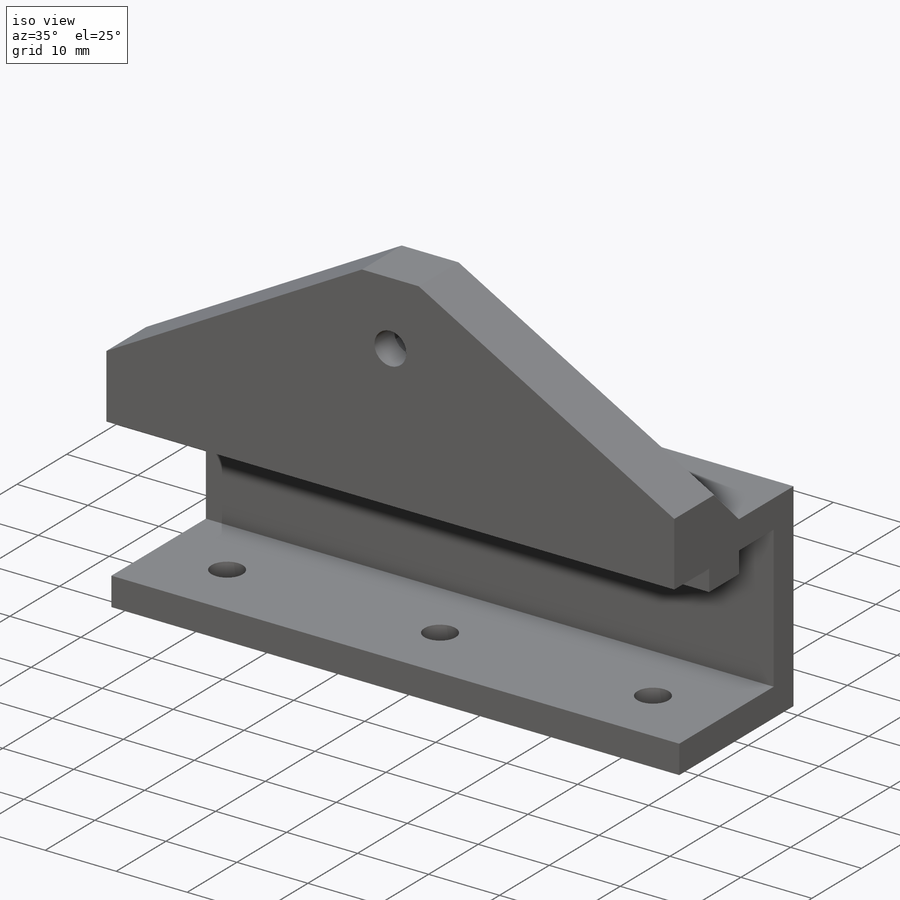
[diagram: iso view]
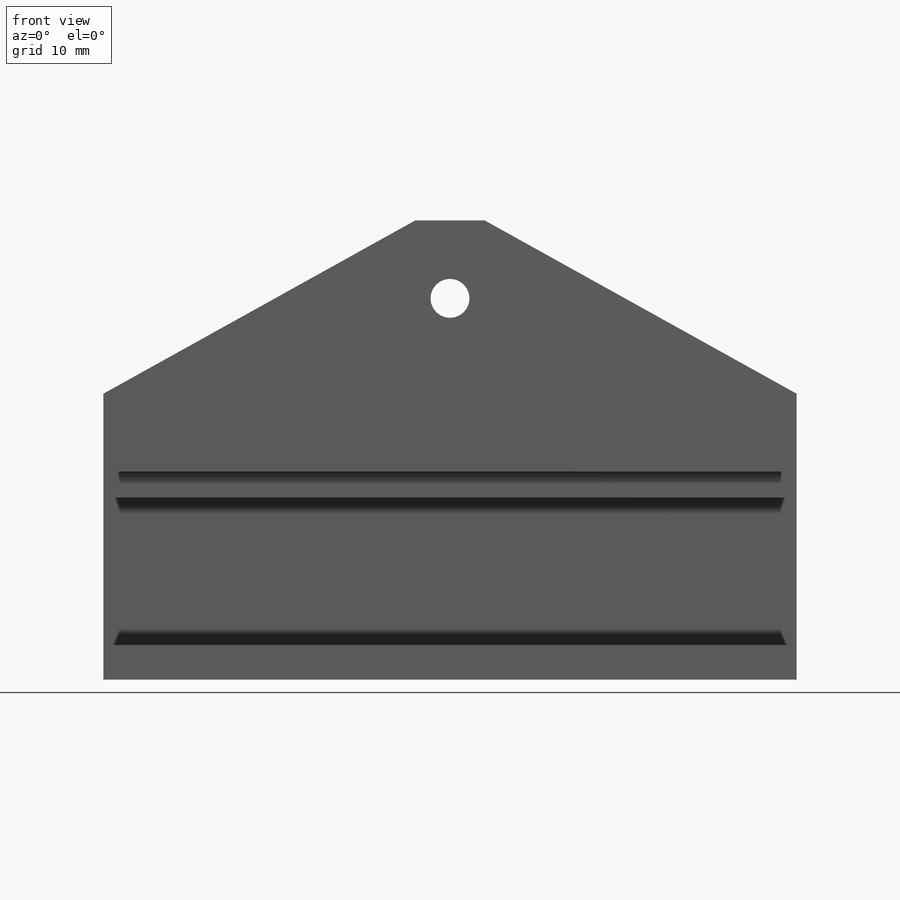
[diagram: front view]
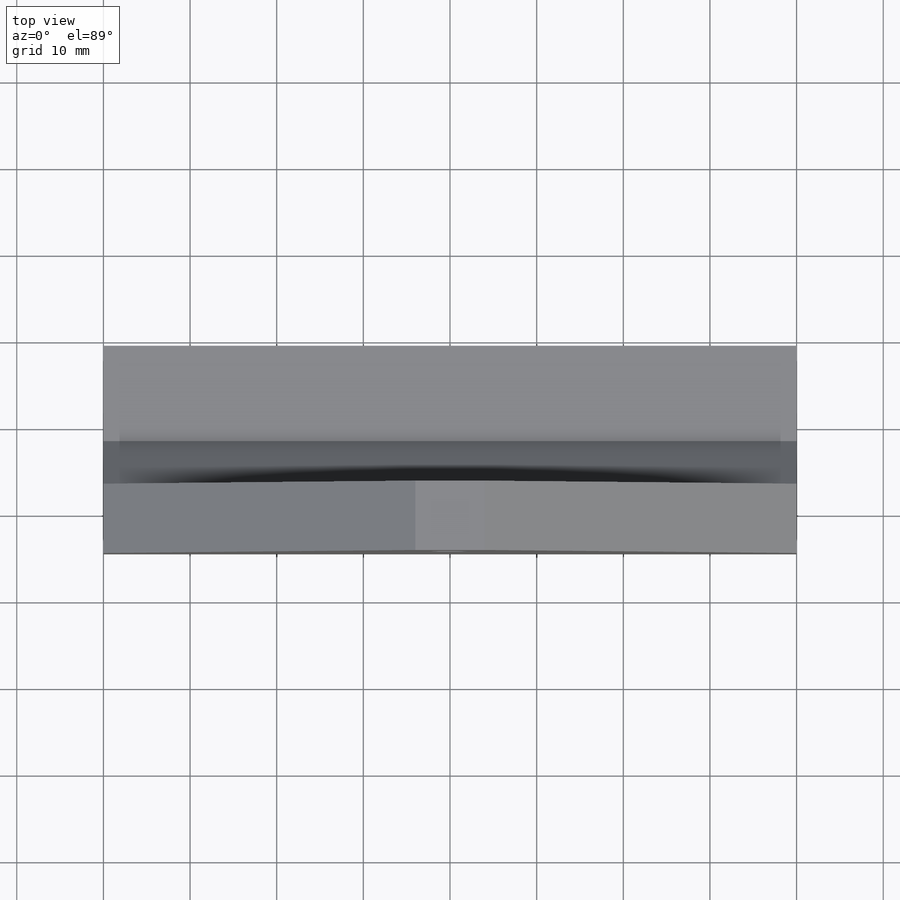
[diagram: top view]
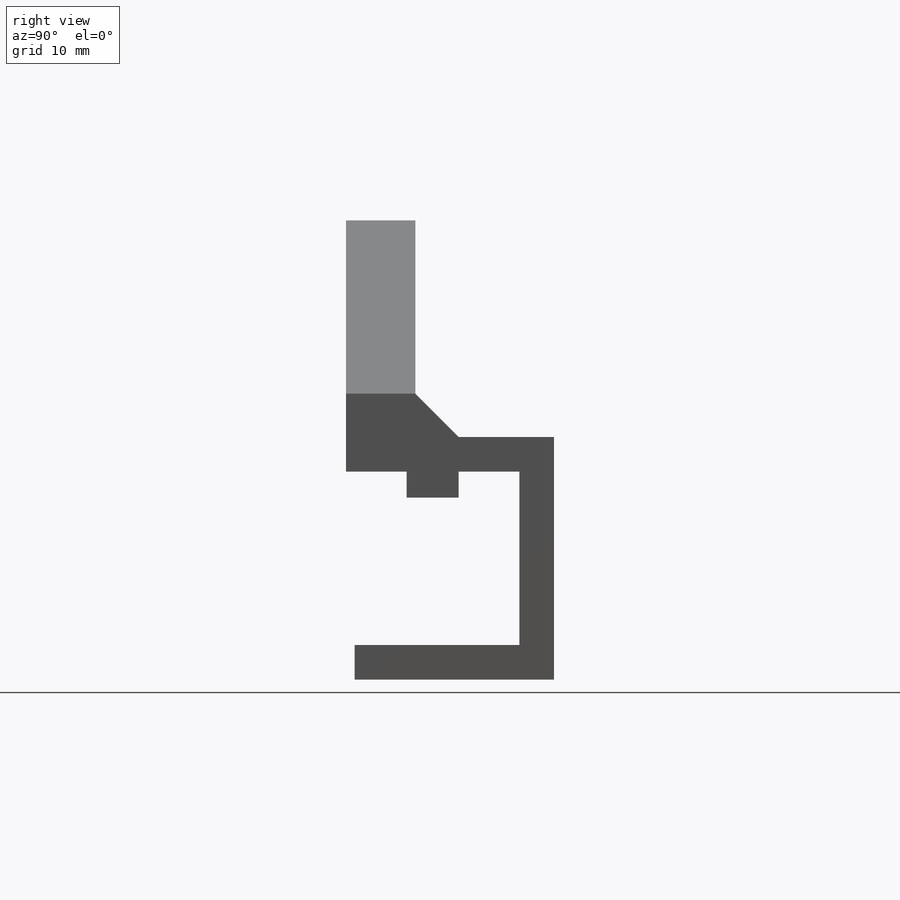
[diagram: right view]
SOLIDWORKS PART (.sldprt)
format: sldprt  version: not decoded by parser v0  size: 480,256 bytes
history: native  units: mm
features: sketch x8, plane x3, cut_extrude x2, hole x2, material x1, extrude x1, move_body x1 (+9 scaffold rows collapsed; 1 parser-record rows omitted)
feature tree (28):
  scaffold x9  (default folders/planes/origin — collapsed)
  material  "Matériau <non spécifié>"
  plane  "Plan de face"
  plane  "Plan de dessus"
  plane  "Plan de droite"
  sketch  "Esquisse1"  dims[D1=19.0mm D2=20.0mm D3=7.0mm D4=7.0mm D5=29.0mm D6=3.0mm D7=6.0mm D8=8.0mm D9=4.0mm D10=4.0mm D11=4.0mm D12=11.0mm D13=20.0mm]
  extrude  "Boss.-Extru.1"  Depth=80mm
  sketch  "Esquisse2"  dims[D1=8.0mm D2=20.0mm]
  cut_extrude  "Enlèv. mat.-Extru.1"  [1 undecoded]
  hole  "Dégagement M41"  Diameter=4.5mm Depth=10mm
  sketch  "Esquisse6"  dims[D1=9.0mm]
  sketch  "Esquisse5"  dims[hole-wizard template sketch: 46 standard entries collapsed; hole parameters kept: c15.Diamètre du perçage=4.5mm c15.Profondeur du perçage=10.0mm c15.D3=~14.816244mm c15.Angle de pointe=118.0deg]
  sketch  "Esquisse7"  dims[D1=4.0mm]
  cut_extrude  "Enlèv. mat.-Extru.2"  Depth=4mm
  sketch  "Esquisse8"  dims[D1=9.0mm D2=30.0mm D3=30.0mm]
  hole  "Dégagement M42"  Diameter=4.4mm Depth=10mm
  sketch  "Esquisse10"  dims[D1=10.0mm]
  sketch  "Esquisse9"  dims[hole-wizard template sketch: 47 standard entries collapsed; hole parameters kept: c15.Profondeur du perçage=10.0mm c15.D3=~14.816244mm c15.Angle de pointe=118.0deg]
  parser-record x1  (decoder bookkeeping rows leaked as tree rows — omitted from the tree; the rows remain in map.json)
  move_body  "Corps-Déplacer/Copier1"
decode coverage: 12 of 14 modeling features carry decoded parameters
note: ~ marks probable driven/reference dimensions
note: 1 parameter value undecoded
note: suppression state not decoded; provenance and decode notes live in map.json
